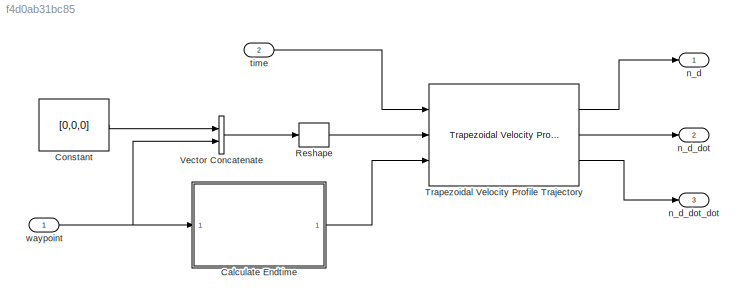
MODEL slx_f4d0ab31bc85
KIND model
CONFIG AbsTol = auto
CONFIG EnableMultiTasking = off
CONFIG FixedStep = auto
CONFIG MaxStep = auto
CONFIG MinStep = auto
CONFIG RelTol = 1e-3
CONFIG SampleTimeConstraint = Unconstrained
CONFIG Solver = VariableStepAuto
CONFIG SolverName = VariableStepAuto
CONFIG StartTime = 0.0
CONFIG StopTime = 10.0
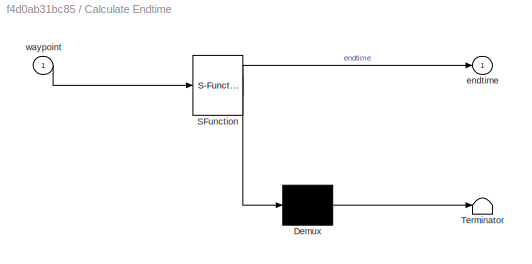
BLOCK [SubSystem] Calculate Endtime
  ErrorFcn = Stateflow.Translate.translate
  PermitHierarchicalResolution = ExplicitOnly
  Ports = [1, 1]
  RequestExecContextInheritance = off
  SFBlockType = MATLAB Function
  TreatAsAtomicUnit = on
BLOCK [Demux] Calculate Endtime/ Demux 
  Outputs = 1
  Ports = [1, 1]
BLOCK [S-Function] Calculate Endtime/ SFunction 
  EnableBusSupport = on
  FunctionName = sf_sfun
  PortCounts = [1 2]
  Ports = [1, 2]
  SFcnIsStateOwnerBlock = off
  SFunctionDeploymentMode = off
  Tag = Stateflow S-Function 2
BLOCK [Terminator] Calculate Endtime/ Terminator 
BLOCK [Outport] Calculate Endtime/endtime
  IconDisplay = Port number
BLOCK [Inport] Calculate Endtime/waypoint
  IconDisplay = Port number
BLOCK [Constant] Constant
  Value = [0,0,0]
BLOCK [Reshape] Reshape
  OutputDimensionality = Customize
  OutputDimensions = [3,2]
  Ports = [1, 1]
BLOCK [Reference] Trapezoidal Velocity Profile Trajectory  REF=robotcorelib/Trapezoidal Velocity Profile Trajectory
  Ports = [3, 3]
  SourceBlock = robotcorelib/Trapezoidal Velocity Profile Trajectory
  SourceProductBaseCode = RO
  SourceProductName = Robotics System Toolbox
  SourceType = robotics.slcore.internal.block.TrapVelTrajSys
BLOCK [Concatenate] Vector Concatenate
  Ports = [2, 1]
BLOCK [Outport] n_d
  IconDisplay = Port number
BLOCK [Outport] n_d_dot
  IconDisplay = Port number
  Port = 2
BLOCK [Outport] n_d_dot_dot
  IconDisplay = Port number
  Port = 3
BLOCK [Inport] time 
  IconDisplay = Port number
  Port = 2
BLOCK [Inport] waypoint 
  IconDisplay = Port number
LINE Calculate Endtime:1 -> Trapezoidal Velocity Profile Trajectory:3
LINE Constant:1 -> Vector Concatenate:1
LINE Reshape:1 -> Trapezoidal Velocity Profile Trajectory:2
LINE Trapezoidal Velocity Profile Trajectory:1 -> n_d:1
LINE Trapezoidal Velocity Profile Trajectory:2 -> n_d_dot:1
LINE Trapezoidal Velocity Profile Trajectory:3 -> n_d_dot_dot:1
LINE Vector Concatenate:1 -> Reshape:1
LINE time :1 -> Trapezoidal Velocity Profile Trajectory:1
NET waypoint :1 -> Calculate Endtime:1, Vector Concatenate:2
note: NET lines group one-source signal fan-out (src -> all destinations, sorted); 1:1 wires keep LINE
CHART Calculate Endtime states=1 transitions=1
  STATE_LABEL 'eML_blk_kernel()'
  STATE_LABEL 'SCRIPT:\nfunction endtime = fcn(waypoint)\n\nspeed = 2;\n\nendtime = sqrt(sum(waypoint .^ 2))/speed;\n\n'
